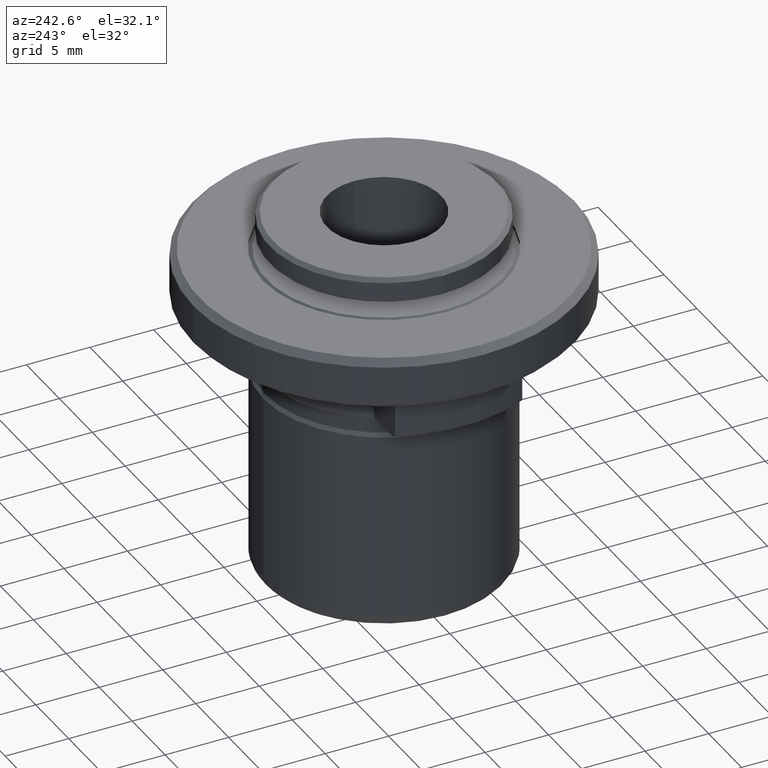
[diagram: clean part render]
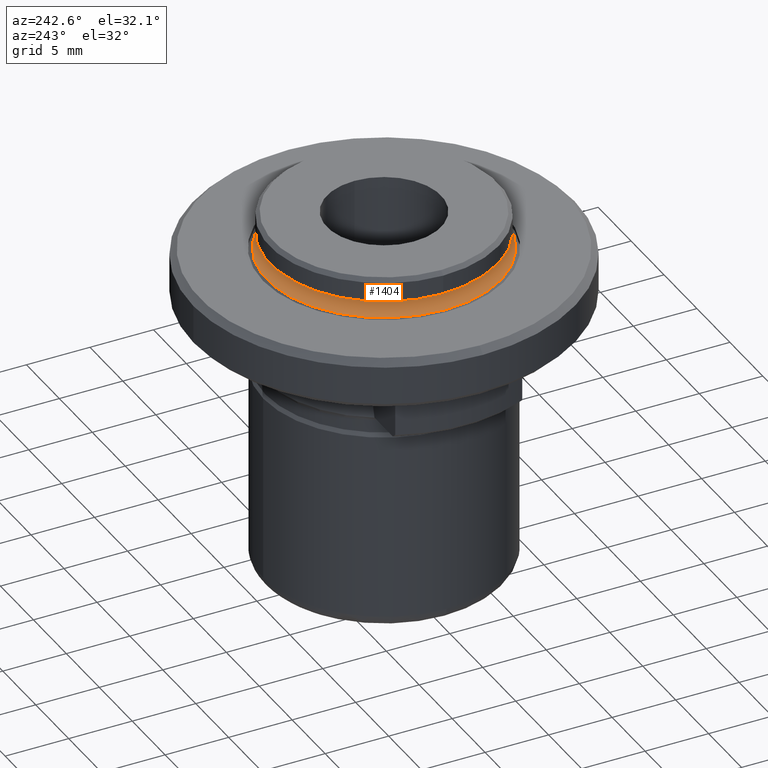
[diagram: same view with one face highlighted and labeled with its STEP entity id]
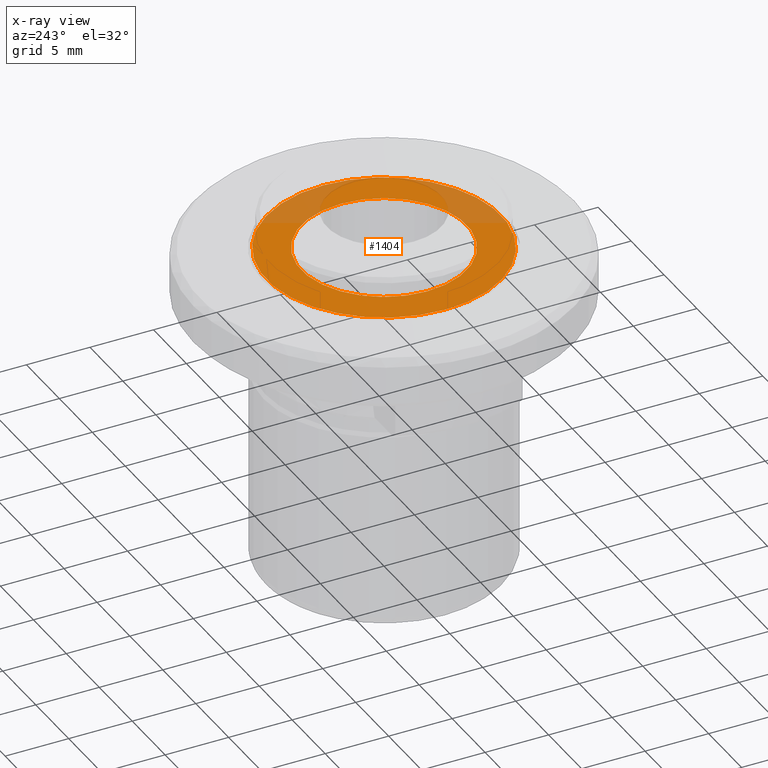
[diagram: x-ray of the same camera — body ghosted, the highlighted face saturated]
A machine part, auxiliary view. The second image highlights one B-rep face of the part: STEP entity #1404.
The next image is the same camera in x-ray: the body ghosted, the highlighted face saturated — about 22% of this face is hidden behind the body in this view.
In plain terms, the highlighted planar face has unit normal (0, 0, -1).
Its self-contained STEP definition (entity closure, byte-faithful):
#37 = CARTESIAN_POINT ( 'NONE',  ( 0.0000000000000000000, 0.0000000000000000000, 12.75000000000004100 ) ) ;
#46 = DIRECTION ( 'NONE',  ( -0.0000000000000000000, -0.0000000000000000000, -1.000000000000000000 ) ) ;
#63 = CARTESIAN_POINT ( 'NONE',  ( 6.499999999999998200, 7.960204194457793500E-016, 12.75000000000004100 ) ) ;
#88 = CARTESIAN_POINT ( 'NONE',  ( -6.499999999999998200, 0.0000000000000000000, 12.75000000000004100 ) ) ;
#123 = EDGE_CURVE ( 'NONE', #1242, #1096, #1279, .T. ) ;
#179 = DIRECTION ( 'NONE',  ( -1.000000000000000000, 0.0000000000000000000, 0.0000000000000000000 ) ) ;
#206 = AXIS2_PLACEMENT_3D ( 'NONE', #761, #366, #1405 ) ;
#287 = VERTEX_POINT ( 'NONE', #1431 ) ;
#320 = EDGE_LOOP ( 'NONE', ( #1566, #1525 ) ) ;
#323 = CIRCLE ( 'NONE', #206, 9.219999999999961600 ) ;
#366 = DIRECTION ( 'NONE',  ( -0.0000000000000000000, -0.0000000000000000000, 1.000000000000000000 ) ) ;
#405 = EDGE_CURVE ( 'NONE', #1096, #1242, #1508, .T. ) ;
#418 = EDGE_CURVE ( 'NONE', #287, #1774, #841, .T. ) ;
#419 = PLANE ( 'NONE',  #439 ) ;
#439 = AXIS2_PLACEMENT_3D ( 'NONE', #1119, #1391, #572 ) ;
#489 = EDGE_CURVE ( 'NONE', #1774, #287, #323, .T. ) ;
#564 = AXIS2_PLACEMENT_3D ( 'NONE', #899, #46, #1033 ) ;
#572 = DIRECTION ( 'NONE',  ( -1.000000000000000000, 0.0000000000000000000, 0.0000000000000000000 ) ) ;
#608 = CARTESIAN_POINT ( 'NONE',  ( 9.219999999999961600, 1.147494050801067600E-015, 12.75000000000003900 ) ) ;
#653 = FACE_OUTER_BOUND ( 'NONE', #320, .T. ) ;
#701 = EDGE_LOOP ( 'NONE', ( #1266, #946 ) ) ;
#758 = CARTESIAN_POINT ( 'NONE',  ( 0.0000000000000000000, 0.0000000000000000000, 12.75000000000003900 ) ) ;
#761 = CARTESIAN_POINT ( 'NONE',  ( 0.0000000000000000000, 0.0000000000000000000, 12.75000000000003900 ) ) ;
#841 = CIRCLE ( 'NONE', #1451, 9.219999999999961600 ) ;
#899 = CARTESIAN_POINT ( 'NONE',  ( 0.0000000000000000000, 0.0000000000000000000, 12.75000000000004100 ) ) ;
#901 = DIRECTION ( 'NONE',  ( -1.000000000000000000, 0.0000000000000000000, 0.0000000000000000000 ) ) ;
#946 = ORIENTED_EDGE ( 'NONE', *, *, #405, .T. ) ;
#1027 = DIRECTION ( 'NONE',  ( -0.0000000000000000000, -0.0000000000000000000, -1.000000000000000000 ) ) ;
#1033 = DIRECTION ( 'NONE',  ( -1.000000000000000000, 0.0000000000000000000, 0.0000000000000000000 ) ) ;
#1096 = VERTEX_POINT ( 'NONE', #63 ) ;
#1119 = CARTESIAN_POINT ( 'NONE',  ( 9.330640000000000700, -9.330640000000000700, 12.75000000000000200 ) ) ;
#1242 = VERTEX_POINT ( 'NONE', #88 ) ;
#1260 = AXIS2_PLACEMENT_3D ( 'NONE', #37, #1027, #179 ) ;
#1266 = ORIENTED_EDGE ( 'NONE', *, *, #123, .T. ) ;
#1279 = CIRCLE ( 'NONE', #564, 6.499999999999998200 ) ;
#1391 = DIRECTION ( 'NONE',  ( 0.0000000000000000000, 0.0000000000000000000, -1.000000000000000000 ) ) ;
#1404 = ADVANCED_FACE ( 'NONE', ( #1732, #653 ), #419, .F. ) ;
#1405 = DIRECTION ( 'NONE',  ( -1.000000000000000000, 0.0000000000000000000, 0.0000000000000000000 ) ) ;
#1431 = CARTESIAN_POINT ( 'NONE',  ( -9.219999999999961600, 0.0000000000000000000, 12.75000000000003900 ) ) ;
#1451 = AXIS2_PLACEMENT_3D ( 'NONE', #758, #1700, #901 ) ;
#1508 = CIRCLE ( 'NONE', #1260, 6.499999999999998200 ) ;
#1525 = ORIENTED_EDGE ( 'NONE', *, *, #489, .T. ) ;
#1566 = ORIENTED_EDGE ( 'NONE', *, *, #418, .T. ) ;
#1700 = DIRECTION ( 'NONE',  ( -0.0000000000000000000, -0.0000000000000000000, 1.000000000000000000 ) ) ;
#1732 = FACE_BOUND ( 'NONE', #701, .T. ) ;
#1774 = VERTEX_POINT ( 'NONE', #608 ) ;